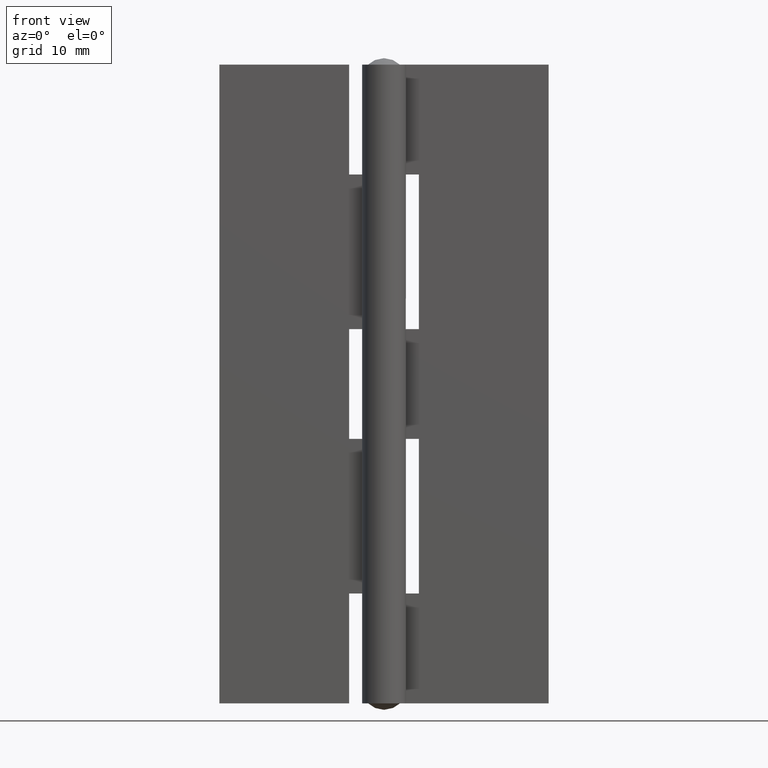
[diagram: clean part render]
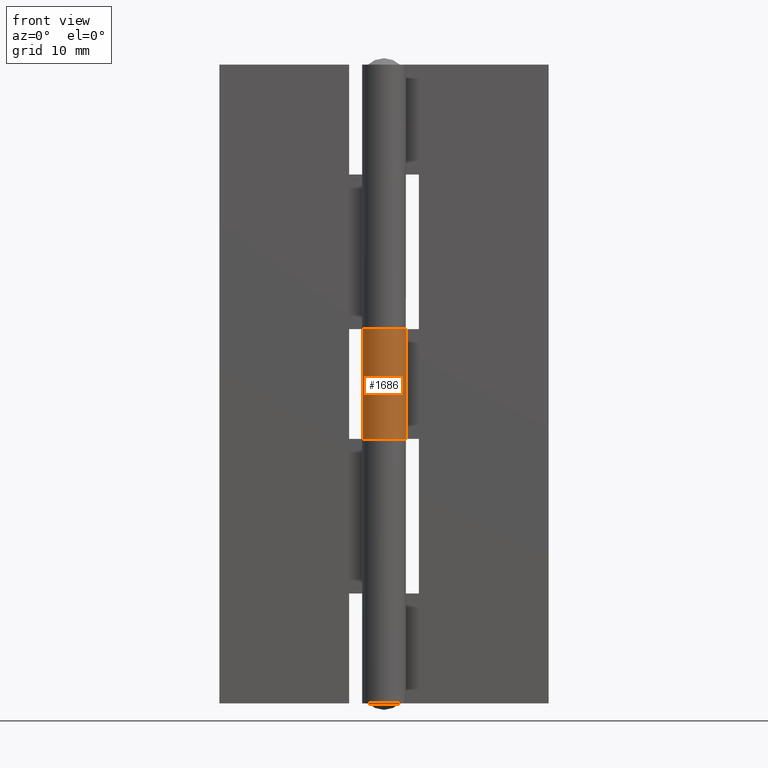
[diagram: same view with one face highlighted and labeled with its STEP entity id]
A machine part, front view. The second image highlights one B-rep face of the part: STEP entity #1686.
In plain terms, the highlighted face is a freeform B-spline surface patch.
Its self-contained STEP definition (entity closure, byte-faithful):
#1282=CARTESIAN_POINT('',(1.875497693946860,1.149996000000000,37.500000000000000));
#1283=VERTEX_POINT('',#1282);
#1292=CARTESIAN_POINT('',(1.431147E-014,2.199996000000000,37.500000000000000));
#1293=VERTEX_POINT('',#1292);
#1299=CARTESIAN_POINT('',(1.875497693946860,1.149996000000000,37.500000000000000));
#1300=CARTESIAN_POINT('',(2.009625278553714,0.931606751645183,37.500000000000007));
#1301=CARTESIAN_POINT('',(2.183271941372472,0.490068649110305,37.500000000000000));
#1302=CARTESIAN_POINT('',(2.219492183397989,-0.148634725193534,37.500000000000028));
#1303=CARTESIAN_POINT('',(2.113815803028347,-0.669028983297472,37.499999999999943));
#1304=CARTESIAN_POINT('',(1.911676849550215,-1.126462690307196,37.500000000000092));
#1305=CARTESIAN_POINT('',(1.638741264960471,-1.491347968508167,37.499999999999879));
#1306=CARTESIAN_POINT('',(1.321156110514914,-1.771536589821177,37.500000000000497));
#1307=CARTESIAN_POINT('',(1.013320703825209,-1.963924880409604,37.499999999998913));
#1308=CARTESIAN_POINT('',(0.678123844144945,-2.103323326126659,37.500000000001322));
#1309=CARTESIAN_POINT('',(0.295172563105190,-2.192858536907655,37.499999999997613));
#1310=CARTESIAN_POINT('',(-0.098459487781352,-2.210447768100992,37.500000000001158));
#1311=CARTESIAN_POINT('',(-0.547775498864749,-2.146968988181394,37.499999999999332));
#1312=CARTESIAN_POINT('',(-1.005052424425312,-1.982199429726063,37.500000000000867));
#1313=CARTESIAN_POINT('',(-1.458619254961813,-1.676778271000186,37.499999999999353));
#1314=CARTESIAN_POINT('',(-1.823923555337863,-1.269855094914309,37.500000000000853));
#1315=CARTESIAN_POINT('',(-2.092972424577923,-0.759162827531294,37.499999999999638));
#1316=CARTESIAN_POINT('',(-2.217950329572137,-0.194015783440983,37.499999999999162));
#1317=CARTESIAN_POINT('',(-2.190755032958778,0.352140311370380,37.500000000000043));
#1318=CARTESIAN_POINT('',(-2.066954234788229,0.789578700304712,37.500000000000327));
#1319=CARTESIAN_POINT('',(-1.878657491824571,1.168932964328303,37.499999999999893));
#1320=CARTESIAN_POINT('',(-1.641539762284396,1.483618664730047,37.499999999999993));
#1321=CARTESIAN_POINT('',(-1.351112282154628,1.748802184448689,37.500000000000043));
#1322=CARTESIAN_POINT('',(-1.046577263008441,1.946399965505070,37.499999999999631));
#1323=CARTESIAN_POINT('',(-0.602895455471993,2.139874743559950,37.500000000001023));
#1324=CARTESIAN_POINT('',(-0.241214603466560,2.200155515783271,37.499999999999240));
#1325=CARTESIAN_POINT('',(1.431147E-014,2.199996000000000,37.500000000000000));
#1326=B_SPLINE_CURVE_WITH_KNOTS('',3,(#1299,#1300,#1301,#1302,#1303,#1304,#1305,#1306,#1307,#1308,#1309,#1310,#1311,#1312,#1313,#1314,#1315,#1316,#1317,#1318,#1319,#1320,#1321,#1322,#1323,#1324,#1325),.UNSPECIFIED.,.F.,.U.,(4,1,1,1,1,1,1,1,1,1,1,1,1,1,1,1,1,1,1,1,1,1,1,1,4),(0.000000077843978,0.768799531178948,1.401968614064984,1.899443346042762,2.351712335609932,2.894384940258895,3.256156656627914,3.617968337846623,3.979767644631568,4.341577385854124,4.793840175794701,5.155646344167911,5.698325058609565,6.240987659579509,6.783699487248528,7.326414567862968,7.959571325239322,8.502267705028032,8.954483402297853,9.316278210237918,9.768537427309736,10.130347168535691,10.492156909763320,10.853956216570911,11.577539614206110),.UNSPECIFIED.);
#1327=EDGE_CURVE('',#1283,#1293,#1326,.T.);
#1339=CARTESIAN_POINT('',(1.431147E-014,2.199996000000000,26.500000000000000));
#1340=VERTEX_POINT('',#1339);
#1353=CARTESIAN_POINT('',(1.875497693946860,1.149996000000000,26.500000000000000));
#1354=VERTEX_POINT('',#1353);
#1360=CARTESIAN_POINT('',(1.431147E-014,2.199996000000000,26.500000000000000));
#1361=CARTESIAN_POINT('',(-0.256279041471771,2.200180435679398,26.499999999999989));
#1362=CARTESIAN_POINT('',(-0.723479190136069,2.117394326893563,26.500000000000028));
#1363=CARTESIAN_POINT('',(-1.340606965888662,1.785625075222259,26.500000000000021));
#1364=CARTESIAN_POINT('',(-1.737288213876471,1.384087397585367,26.500000000000000));
#1365=CARTESIAN_POINT('',(-1.995100762792644,0.956664914186454,26.500000000000011));
#1366=CARTESIAN_POINT('',(-2.165108821527488,0.502500559547714,26.500000000000028));
#1367=CARTESIAN_POINT('',(-2.222610106338366,-0.012139664086295,26.500000000000050));
#1368=CARTESIAN_POINT('',(-2.157085449250892,-0.492647506738266,26.499999999999901));
#1369=CARTESIAN_POINT('',(-2.033221172269683,-0.865908626044367,26.499999999999918));
#1370=CARTESIAN_POINT('',(-1.835865692320586,-1.240660743655622,26.500000000000249));
#1371=CARTESIAN_POINT('',(-1.545644905733239,-1.591968021744064,26.499999999999499));
#1372=CARTESIAN_POINT('',(-1.112761980365599,-1.924028169935201,26.500000000000899));
#1373=CARTESIAN_POINT('',(-0.665333736329751,-2.117201492297741,26.499999999999609));
#1374=CARTESIAN_POINT('',(-0.129710778189036,-2.215507955337639,26.499999999999950));
#1375=CARTESIAN_POINT('',(0.296323434916615,-2.196479067448321,26.499999999999918));
#1376=CARTESIAN_POINT('',(0.735330490306200,-2.084223925449775,26.500000000000391));
#1377=CARTESIAN_POINT('',(1.068210995218570,-1.937696368834833,26.499999999999432));
#1378=CARTESIAN_POINT('',(1.442826482732076,-1.681619062456989,26.500000000000711));
#1379=CARTESIAN_POINT('',(1.737503532452841,-1.374988549315386,26.499999999999790));
#1380=CARTESIAN_POINT('',(1.994642107803472,-0.964901494542774,26.500000000000149));
#1381=CARTESIAN_POINT('',(2.142225122392613,-0.566026893626173,26.499999999999929));
#1382=CARTESIAN_POINT('',(2.218559045854475,-0.057417989123801,26.500000000000199));
#1383=CARTESIAN_POINT('',(2.173888739079923,0.519642899268351,26.499999999999581));
#1384=CARTESIAN_POINT('',(2.001708500495808,0.944440739709005,26.500000000000139));
#1385=CARTESIAN_POINT('',(1.875497693946860,1.149996000000000,26.500000000000000));
#1386=B_SPLINE_CURVE_WITH_KNOTS('',3,(#1360,#1361,#1362,#1363,#1364,#1365,#1366,#1367,#1368,#1369,#1370,#1371,#1372,#1373,#1374,#1375,#1376,#1377,#1378,#1379,#1380,#1381,#1382,#1383,#1384,#1385),.UNSPECIFIED.,.F.,.U.,(4,1,1,1,1,1,1,1,1,1,1,1,1,1,1,1,1,1,1,1,1,1,1,4),(0.000000077843223,0.768799531178257,1.401968614064327,2.080356669946950,2.442157826308943,2.894384940258297,3.527508427566501,3.979767644630981,4.341577385853557,4.703387127084560,5.246101601121872,5.698325058609083,6.331438061929408,6.693252240738899,7.326414567862656,7.597772018423905,8.050031235503088,8.411826043403741,8.954483402297679,9.316278210237796,9.858993472508020,10.220799459204519,10.853956216570880,11.577539614206110),.UNSPECIFIED.);
#1387=EDGE_CURVE('',#1340,#1354,#1386,.T.);
#1625=CARTESIAN_POINT('',(1.875497693946860,1.149996000000000,37.500000000000000));
#1626=CARTESIAN_POINT('',(1.875497693946860,1.149996000000000,26.500000000000000));
#1627=QUASI_UNIFORM_CURVE('',1,(#1625,#1626),.UNSPECIFIED.,.F.,.U.);
#1628=EDGE_CURVE('',#1283,#1354,#1627,.T.);
#1639=CARTESIAN_POINT('',(1.431147E-014,2.199996000000000,37.500000000000000));
#1640=CARTESIAN_POINT('',(1.431147E-014,2.199996000000000,26.500000000000000));
#1641=QUASI_UNIFORM_CURVE('',1,(#1639,#1640),.UNSPECIFIED.,.F.,.U.);
#1642=EDGE_CURVE('',#1293,#1340,#1641,.T.);
#1658=CARTESIAN_POINT('',(0.076191183322775,2.198676261662855,37.775000000000013));
#1659=CARTESIAN_POINT('',(0.076191183322775,2.198676261662855,26.218125000000001));
#1660=CARTESIAN_POINT('',(-2.671479831332791,2.293891873728420,37.775000000000006));
#1661=CARTESIAN_POINT('',(-2.671479831332791,2.293891873728420,26.218125000000001));
#1662=CARTESIAN_POINT('',(-2.161872592695162,-0.407785842041450,37.775000000000013));
#1663=CARTESIAN_POINT('',(-2.161872592695162,-0.407785842041450,26.218125000000001));
#1664=CARTESIAN_POINT('',(-1.652265354057534,-3.109463557811318,37.775000000000006));
#1665=CARTESIAN_POINT('',(-1.652265354057534,-3.109463557811318,26.218125000000001));
#1666=CARTESIAN_POINT('',(0.871913712268721,-2.019838824850615,37.775000000000013));
#1667=CARTESIAN_POINT('',(0.871913712268721,-2.019838824850615,26.218125000000001));
#1668=CARTESIAN_POINT('',(3.396092778594975,-0.930214091889911,37.775000000000006));
#1669=CARTESIAN_POINT('',(3.396092778594975,-0.930214091889911,26.218125000000001));
#1670=CARTESIAN_POINT('',(1.779488514221492,1.293600799230489,37.775000000000013));
#1671=CARTESIAN_POINT('',(1.779488514221492,1.293600799230489,26.218125000000001));
#1679=(BOUNDED_SURFACE()B_SPLINE_SURFACE(1,2,((#1658,#1660,#1662,#1664,#1666,#1668,#1670),(#1659,#1661,#1663,#1665,#1667,#1669,#1671)),.UNSPECIFIED.,.F.,.F.,.U.)B_SPLINE_SURFACE_WITH_KNOTS((2,2),(3,2,2,3),(0.0,11.556875000000010),(0.0,4.228842634315821,8.457685268631643,12.686527902947461),.UNSPECIFIED.)GEOMETRIC_REPRESENTATION_ITEM()RATIONAL_B_SPLINE_SURFACE(((1.0,0.624788514543960,1.0,0.624788514543960,1.0,0.624788514543960,1.0),(1.0,0.624788514543960,1.0,0.624788514543960,1.0,0.624788514543960,1.0)))REPRESENTATION_ITEM('')SURFACE());
#1680=ORIENTED_EDGE('',*,*,#1628,.F.);
#1681=ORIENTED_EDGE('',*,*,#1327,.T.);
#1682=ORIENTED_EDGE('',*,*,#1642,.T.);
#1683=ORIENTED_EDGE('',*,*,#1387,.T.);
#1684=EDGE_LOOP('',(#1680,#1681,#1682,#1683));
#1685=FACE_OUTER_BOUND('',#1684,.T.);
#1686=ADVANCED_FACE('',(#1685),#1679,.T.);